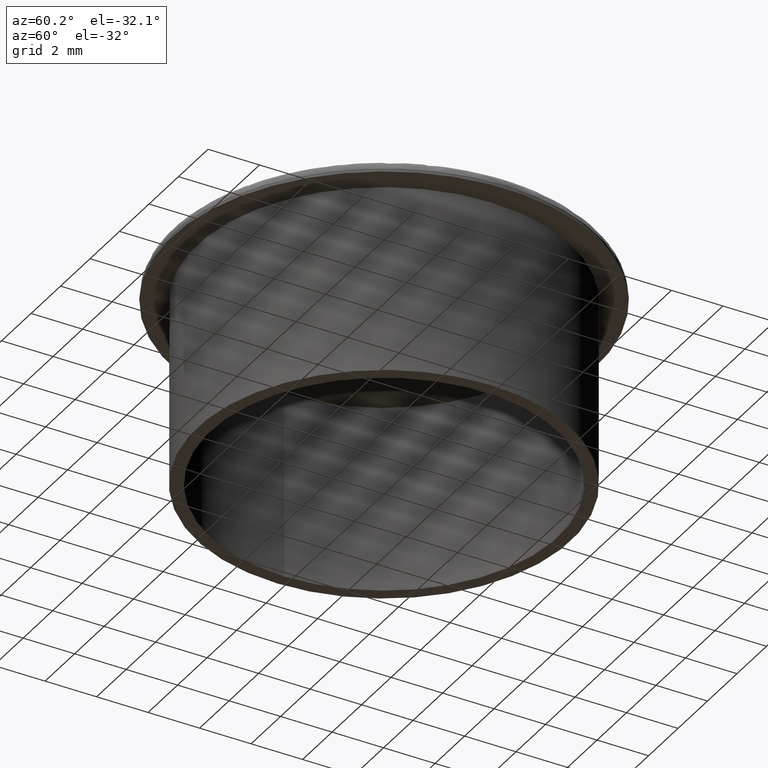
[diagram: clean part render]
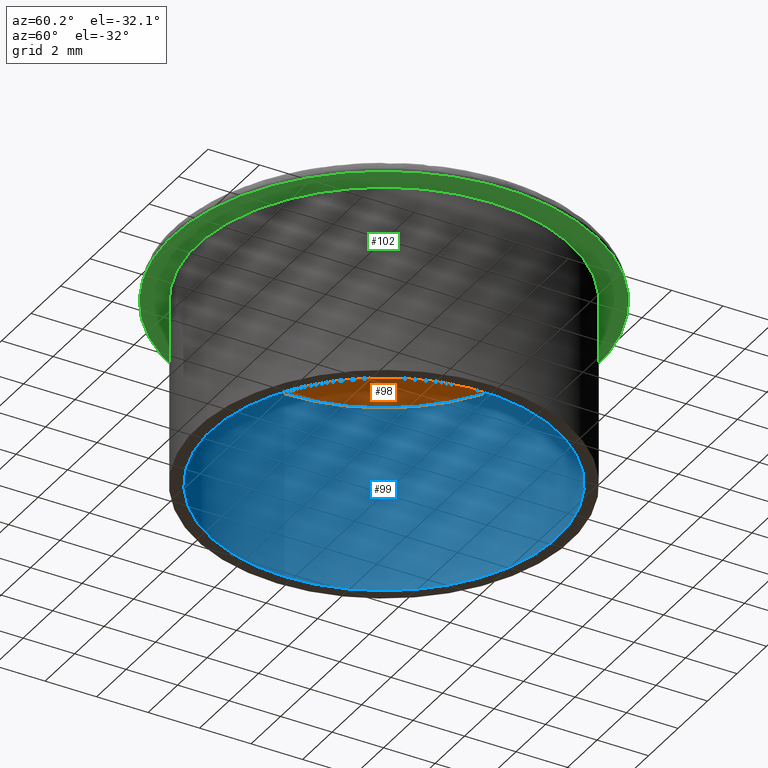
[diagram: same view with three faces highlighted in distinct colors, each labeled with its STEP entity id]
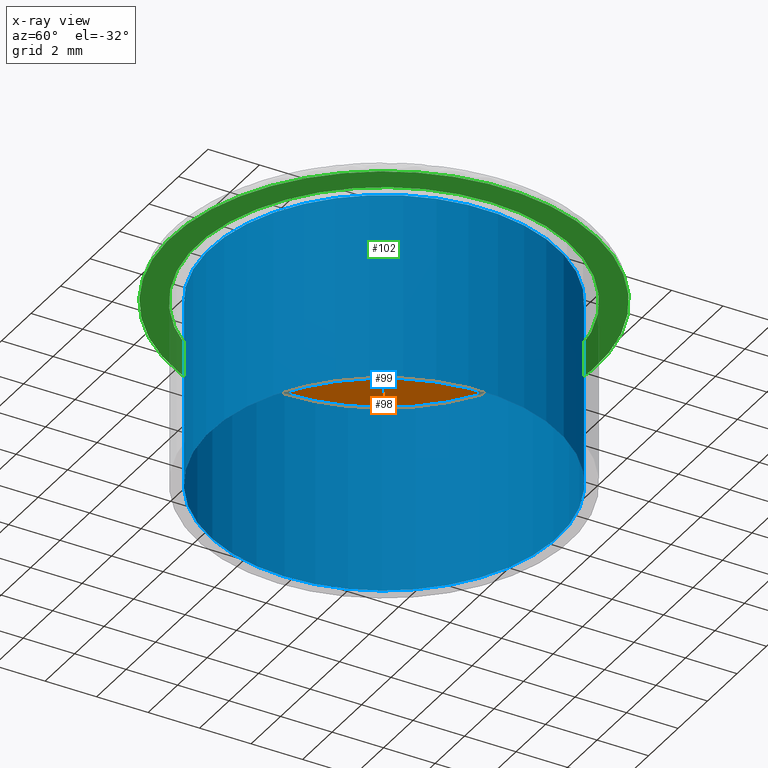
[diagram: x-ray of the same camera — body ghosted, the three highlighted faces saturated]
A machine part, auxiliary view with three faces highlighted in distinct colors.
The next image is the same camera in x-ray (body ghosted, the three faces saturated) — at least one of them is partly hidden behind the body in this view.
Their STEP definitions:

[orange] entity #98 — the highlighted planar face has unit normal (0, 0, 1).
#25=FACE_OUTER_BOUND('',#33,.T.);
#33=EDGE_LOOP('',(#75));
#46=CIRCLE('',#109,6.75000000000001);
#56=VERTEX_POINT('',#163);
#65=EDGE_CURVE('',#56,#56,#46,.T.);
#75=ORIENTED_EDGE('',*,*,#65,.T.);
#95=PLANE('',#108);
#98=ADVANCED_FACE('',(#25),#95,.F.);
#108=AXIS2_PLACEMENT_3D('',#162,#127,#128);
#109=AXIS2_PLACEMENT_3D('',#164,#129,#130);
#127=DIRECTION('center_axis',(0.,0.,1.));
#128=DIRECTION('ref_axis',(1.,0.,0.));
#129=DIRECTION('center_axis',(0.,0.,-1.));
#130=DIRECTION('ref_axis',(1.,0.,0.));
#162=CARTESIAN_POINT('Origin',(-13.5,13.5,0.));
#163=CARTESIAN_POINT('',(-6.75000000000001,0.,0.));
#164=CARTESIAN_POINT('Origin',(0.,0.,0.));

[blue] entity #99 — the highlighted cylindrical surface (bore or boss wall) has radius 6.75 mm, axis along (0, 0, -1).
#17=FACE_BOUND('',#35,.T.);
#22=CYLINDRICAL_SURFACE('',#110,6.75000000000001);
#26=FACE_OUTER_BOUND('',#34,.T.);
#34=EDGE_LOOP('',(#76));
#35=EDGE_LOOP('',(#77));
#46=CIRCLE('',#109,6.75000000000001);
#47=CIRCLE('',#111,6.75000000000001);
#56=VERTEX_POINT('',#163);
#57=VERTEX_POINT('',#166);
#65=EDGE_CURVE('',#56,#56,#46,.T.);
#66=EDGE_CURVE('',#57,#57,#47,.T.);
#76=ORIENTED_EDGE('',*,*,#66,.T.);
#77=ORIENTED_EDGE('',*,*,#65,.F.);
#99=ADVANCED_FACE('',(#26,#17),#22,.F.);
#109=AXIS2_PLACEMENT_3D('',#164,#129,#130);
#110=AXIS2_PLACEMENT_3D('',#165,#131,#132);
#111=AXIS2_PLACEMENT_3D('',#167,#133,#134);
#129=DIRECTION('center_axis',(0.,0.,-1.));
#130=DIRECTION('ref_axis',(1.,0.,0.));
#131=DIRECTION('center_axis',(0.,0.,-1.));
#132=DIRECTION('ref_axis',(1.,0.,0.));
#133=DIRECTION('center_axis',(0.,0.,-1.));
#134=DIRECTION('ref_axis',(1.,0.,0.));
#163=CARTESIAN_POINT('',(-6.75000000000001,0.,0.));
#164=CARTESIAN_POINT('Origin',(0.,0.,0.));
#165=CARTESIAN_POINT('Origin',(0.,0.,0.));
#166=CARTESIAN_POINT('',(-6.75000000000001,0.,-7.27228247973548));
#167=CARTESIAN_POINT('Origin',(0.,0.,-7.27228247973548));

[green] entity #102 — the highlighted planar face has unit normal (0, 0, 1).
#20=FACE_BOUND('',#41,.T.);
#29=FACE_OUTER_BOUND('',#40,.T.);
#40=EDGE_LOOP('',(#82));
#41=EDGE_LOOP('',(#83));
#49=CIRCLE('',#115,7.25000000000001);
#50=CIRCLE('',#117,8.25000000000001);
#59=VERTEX_POINT('',#172);
#60=VERTEX_POINT('',#175);
#68=EDGE_CURVE('',#59,#59,#49,.T.);
#69=EDGE_CURVE('',#60,#60,#50,.T.);
#82=ORIENTED_EDGE('',*,*,#69,.T.);
#83=ORIENTED_EDGE('',*,*,#68,.F.);
#97=PLANE('',#116);
#102=ADVANCED_FACE('',(#29,#20),#97,.F.);
#115=AXIS2_PLACEMENT_3D('',#173,#141,#142);
#116=AXIS2_PLACEMENT_3D('',#174,#143,#144);
#117=AXIS2_PLACEMENT_3D('',#176,#145,#146);
#141=DIRECTION('center_axis',(0.,0.,-1.));
#142=DIRECTION('ref_axis',(1.,0.,0.));
#143=DIRECTION('center_axis',(0.,0.,1.));
#144=DIRECTION('ref_axis',(1.,0.,0.));
#145=DIRECTION('center_axis',(0.,0.,-1.));
#146=DIRECTION('ref_axis',(1.,0.,0.));
#172=CARTESIAN_POINT('',(-7.25000000000001,0.,0.));
#173=CARTESIAN_POINT('Origin',(0.,0.,0.));
#174=CARTESIAN_POINT('Origin',(-16.5,16.5,0.));
#175=CARTESIAN_POINT('',(-8.25000000000001,0.,0.));
#176=CARTESIAN_POINT('Origin',(0.,0.,0.));